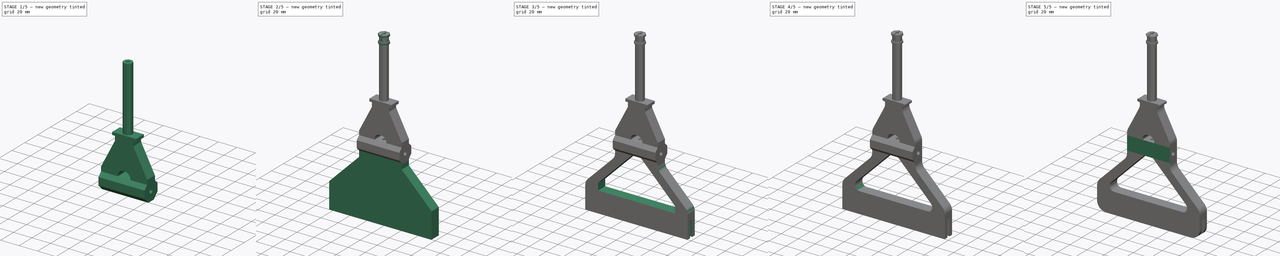
[diagram: build sequence overview — one tinted view per stage of 5, left to right]
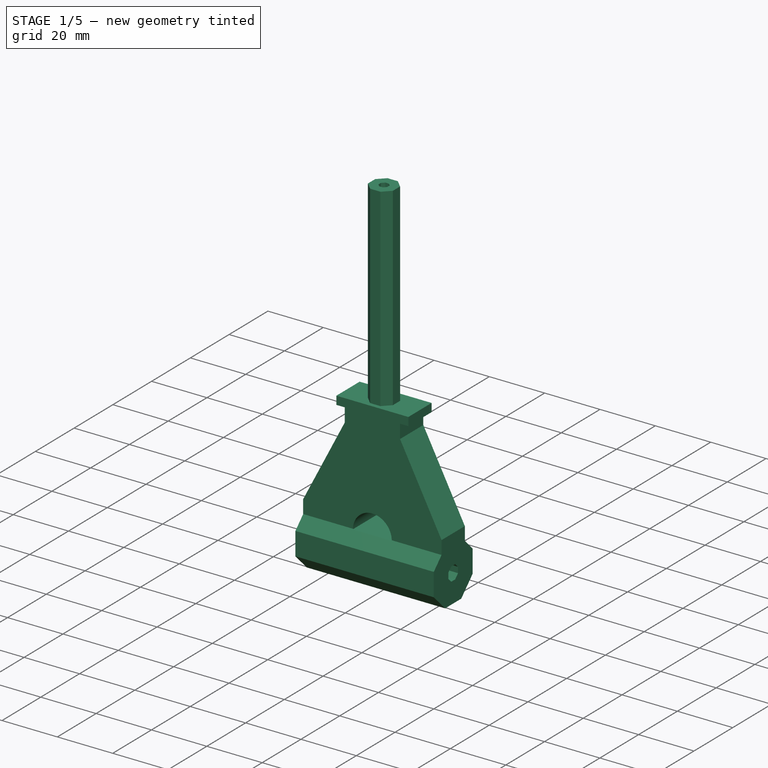
[diagram: stage 1 of 5 — iso view after this stage's code; geometry added in this stage tinted green]
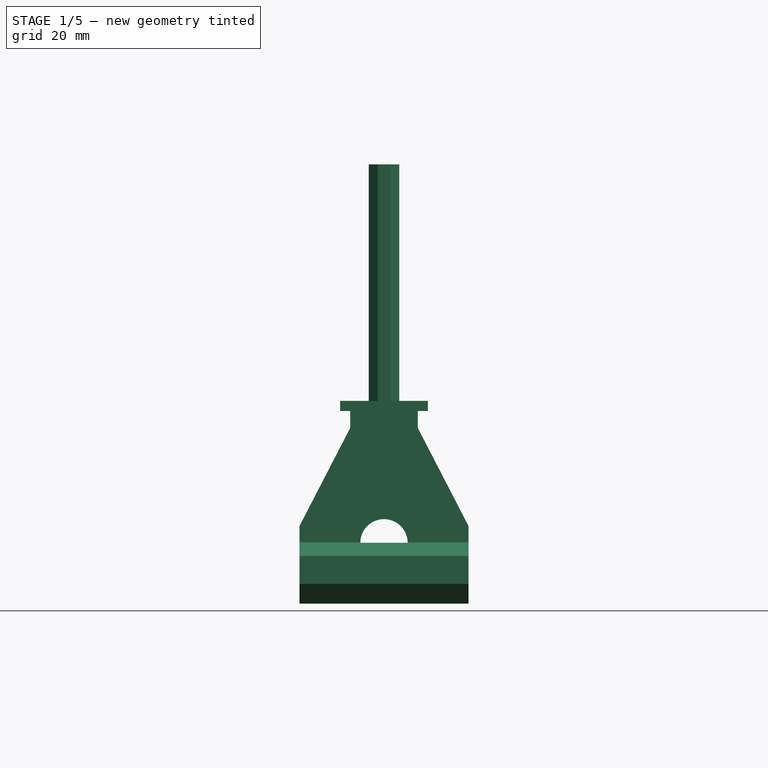
[diagram: stage 1 of 5 — front view after this stage's code; geometry added in this stage tinted green]
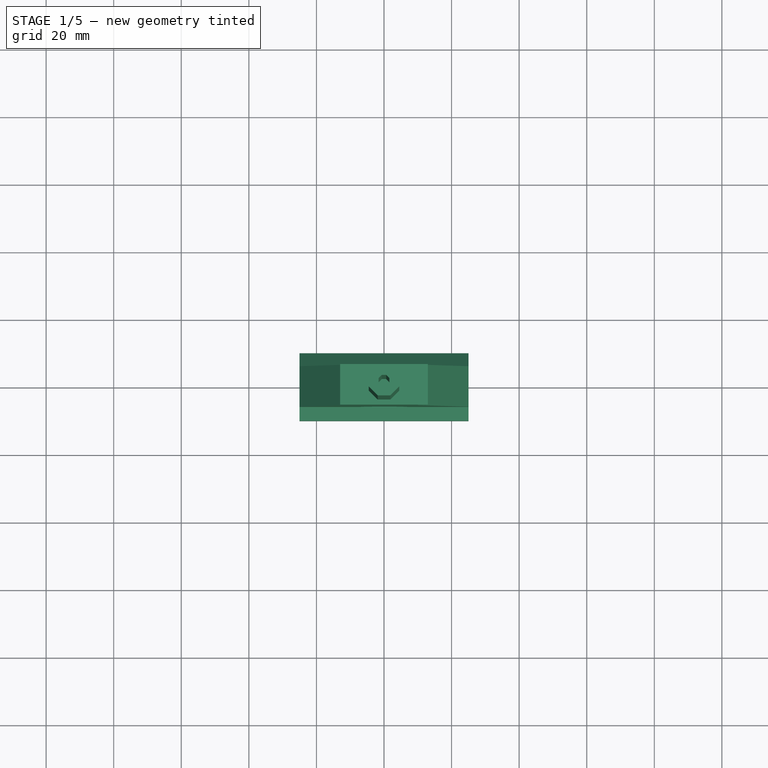
[diagram: stage 1 of 5 — top view after this stage's code; geometry added in this stage tinted green]
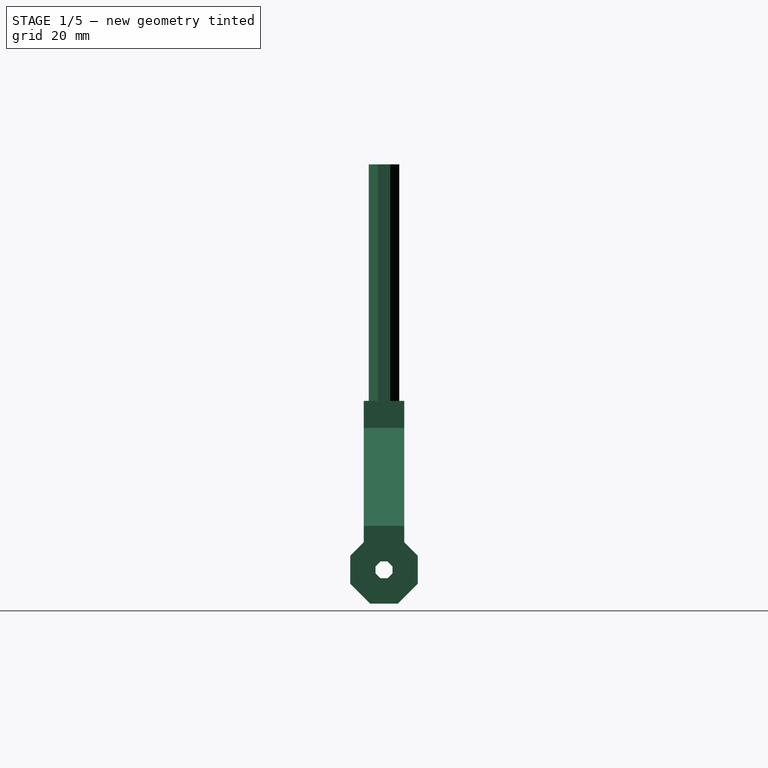
[diagram: stage 1 of 5 — right view after this stage's code; geometry added in this stage tinted green]
FCSTD DOCUMENT  (FreeCAD 0.17R13541 (Git))
Label: Spinner2
License: All rights reserved
LicenseURL: http://en.wikipedia.org/wiki/All_rights_reserved
objects: Sketcher::SketchObject×12, PartDesign::Pocket×7, PartDesign::Fillet×7, PartDesign::Pad×5, PartDesign::Chamfer×2, Spreadsheet::Sheet×1, PartDesign::LinearPattern×1, PartDesign::Body×1
note: 47 computed .brp shape members not serialized (recipe doc carries the construction recipe); baked Part::Feature solids carry a one-line shape summary decoded from their .brp

FEATURE [Spreadsheet::Sheet] Spreadsheet001  label="DriverSheet"
  cells = A1=Eyebolt radius; B1(EyeboltRadius)==2.3500000000000001mm; A2=Eyebolt length; B2(EyeboltLength)==50mm; A3=Clearance; B3(Clearance)==0.14999999999999999mm; A4=Head wide; B4(HeadWide)==20mm; A5=Fiber radius; B5(FiberRadius)==1.5mm; A6=Shaft length; B6(ShaftLength)==120mm; A7=Shaft wide; B7(ShaftWide)==9mm; A8=Shaft offset; B8(ShaftOffset)==5mm; A9=Bridge thick; B9(BridgeThick)==12mm; A10=Bridge length; B10(BridgeLength)==50mm; A11=Bridge wide; B11(BridgeWide)==20mm; A12=Bridge cutout; B12(BridgeCutout)==7mm; A13=Tail length; B13(TailLength)==80mm; A14=Tail tip; B14(TailTip)==30mm; A15=Tail wide; B15(TailWide)==120mm; A16=Tail thick; B16(TailThick)==12mm; A17=Tail slot; B17(TailSlot)==3.7999999999999998mm
FEATURE [Sketcher::SketchObject] Sketch
  MapMode = 5
  Placement = pos=(0,0,0) rot=(0.57735,0.57735,0.57735;2.0944rad)
  Support = -> [YZ_Plane]
  expr: Constraints[58] = DriverSheet.HeadWide
  expr: Constraints[29] = DriverSheet.EyeboltRadius + DriverSheet.Clearance
  expr: Constraints[1] = DriverSheet.EyeboltRadius
  sketch-geometry (22):
    g0: Circle [constr] CenterX=0 CenterY=0 CenterZ=0 NormalX=0 NormalY=0 NormalZ=1 AngleXU=0 Radius=2.35
    g1: LineSegment StartX=2.5 StartY=1.03553 StartZ=0 EndX=1.03553 EndY=2.5 EndZ=0
    g2: LineSegment StartX=1.03553 StartY=2.5 StartZ=0 EndX=-1.03553 EndY=2.5 EndZ=0
    g3: LineSegment StartX=-1.03553 StartY=2.5 StartZ=0 EndX=-2.5 EndY=1.03553 EndZ=0
    g4: LineSegment StartX=-2.5 StartY=1.03553 StartZ=0 EndX=-2.5 EndY=-1.03553 EndZ=0
    g5: LineSegment StartX=-2.5 StartY=-1.03553 StartZ=0 EndX=-1.03553 EndY=-2.5 EndZ=0
    g6: LineSegment StartX=-1.03553 StartY=-2.5 StartZ=0 EndX=1.03553 EndY=-2.5 EndZ=0
    g7: LineSegment StartX=1.03553 StartY=-2.5 StartZ=0 EndX=2.5 EndY=-1.03553 EndZ=0
    g8: LineSegment StartX=2.5 StartY=-1.03553 StartZ=0 EndX=2.5 EndY=1.03553 EndZ=0
    g9: Circle [constr] CenterX=0 CenterY=0 CenterZ=0 NormalX=0 NormalY=0 NormalZ=1 AngleXU=0 Radius=2.70598
    g10: GeomPoint X=2.5 Y=0 Z=0
    g11: LineSegment StartX=10 StartY=-4.14214 StartZ=0 EndX=10 EndY=4.14214 EndZ=0
    g12: LineSegment StartX=10 StartY=4.14214 StartZ=0 EndX=4.14214 EndY=10 EndZ=0
    g13: LineSegment StartX=4.14214 StartY=10 StartZ=0 EndX=-4.14214 EndY=10 EndZ=0
    g14: LineSegment StartX=-4.14214 StartY=10 StartZ=0 EndX=-10 EndY=4.14214 EndZ=0
    g15: LineSegment StartX=-10 StartY=4.14214 StartZ=0 EndX=-10 EndY=-4.14214 EndZ=0
    g16: LineSegment StartX=-10 StartY=-4.14214 StartZ=0 EndX=-4.14214 EndY=-10 EndZ=0
    g17: LineSegment StartX=-4.14214 StartY=-10 StartZ=0 EndX=4.14214 EndY=-10 EndZ=0
    g18: LineSegment StartX=4.14214 StartY=-10 StartZ=0 EndX=10 EndY=-4.14214 EndZ=0
    g19: Circle [constr] CenterX=0 CenterY=0 CenterZ=0 NormalX=0 NormalY=0 NormalZ=1 AngleXU=0 Radius=10.8239
    g20: GeomPoint X=10 Y=-0.001878 Z=0
    g21: GeomPoint X=-10 Y=0 Z=0
  constraints (47):
    c: Coincident(g0,g-1)
    c: Radius(g0) = 2.35
    c: Coincident(g1,g2)
    c: Coincident(g2,g3)
    c: Coincident(g3,g4)
    c: Coincident(g4,g5)
    c: Coincident(g5,g6)
    c: Coincident(g6,g7)
    c: Coincident(g7,g8)
    c: Coincident(g8,g1)
    c: Equal(g1, g2-g8) x7
    c: PointOnObject(g1,g9)
    c: PointOnObject(g2,g9)
    c: PointOnObject(g3,g9)
    c: PointOnObject(g4,g9)
    c: PointOnObject(g5,g9)
    c: PointOnObject(g6,g9)
    c: PointOnObject(g7,g9)
    c: PointOnObject(g8,g9)
    c: Coincident(g9,g-1)
    c: PointOnObject(g10,g8)
    c: PointOnObject(g10,g-1)
    c: Vertical(g8)
    c: DistanceX(g-1,g10) = 2.5
    c: Coincident(g11,g12)
    c: Coincident(g12,g13)
    c: Coincident(g13,g14)
    c: Coincident(g14,g15)
    c: Coincident(g15,g16)
    c: Coincident(g16,g17)
    c: Coincident(g17,g18)
    c: Coincident(g18,g11)
    c: Equal(g11, g12-g18) x7
    c: PointOnObject(g11,g19)
    c: PointOnObject(g12,g19)
    c: PointOnObject(g13,g19)
    c: PointOnObject(g14,g19)
    c: PointOnObject(g15,g19)
    c: PointOnObject(g16,g19)
    c: PointOnObject(g17,g19)
    c: PointOnObject(g18,g19)
    c: Coincident(g19,g-1)
    c: Vertical(g11)
    c: PointOnObject(g20,g11)
    c: PointOnObject(g21,g15)
    c: PointOnObject(g21,g-1)
    c: DistanceX(g21,g20) = 20
FEATURE [PartDesign::Pad] Pad  label="Head"
  Length = 25
  Length2 = 25
  Placement = pos=(0,0,0) rot=(0.57735,0.57735,0.57735;2.0944rad)
  Profile = -> Sketch
  Type = 4
  expr: Length2 = DriverSheet.EyeboltLength * 0.5
  expr: Length = DriverSheet.EyeboltLength * 0.5
FEATURE [Sketcher::SketchObject] Sketch001
  MapMode = 5
  Support = -> [XY_Plane]
  expr: Constraints[59] = DriverSheet.ShaftWide
  expr: Constraints[58] = DriverSheet.FiberRadius + DriverSheet.Clearance * 0.5
  sketch-geometry (22):
    g0: LineSegment StartX=1.575 StartY=-0.652386 StartZ=0 EndX=1.575 EndY=0.652386 EndZ=0
    g1: LineSegment StartX=1.575 StartY=0.652386 StartZ=0 EndX=0.652386 EndY=1.575 EndZ=0
    g2: LineSegment StartX=0.652386 StartY=1.575 StartZ=0 EndX=-0.652386 EndY=1.575 EndZ=0
    g3: LineSegment StartX=-0.652386 StartY=1.575 StartZ=0 EndX=-1.575 EndY=0.652386 EndZ=0
    g4: LineSegment StartX=-1.575 StartY=0.652386 StartZ=0 EndX=-1.575 EndY=-0.652386 EndZ=0
    g5: LineSegment StartX=-1.575 StartY=-0.652386 StartZ=0 EndX=-0.652386 EndY=-1.575 EndZ=0
    g6: LineSegment StartX=-0.652386 StartY=-1.575 StartZ=0 EndX=0.652386 EndY=-1.575 EndZ=0
    g7: LineSegment StartX=0.652386 StartY=-1.575 StartZ=0 EndX=1.575 EndY=-0.652386 EndZ=0
    g8: Circle [constr] CenterX=0 CenterY=0 CenterZ=0 NormalX=0 NormalY=0 NormalZ=1 AngleXU=0 Radius=1.70477
    g9: LineSegment StartX=4.5 StartY=-1.86396 StartZ=0 EndX=4.5 EndY=1.86396 EndZ=0
    g10: LineSegment StartX=4.5 StartY=1.86396 StartZ=0 EndX=1.86396 EndY=4.5 EndZ=0
    g11: LineSegment StartX=1.86396 StartY=4.5 StartZ=0 EndX=-1.86396 EndY=4.5 EndZ=0
    g12: LineSegment StartX=-1.86396 StartY=4.5 StartZ=0 EndX=-4.5 EndY=1.86396 EndZ=0
    g13: LineSegment StartX=-4.5 StartY=1.86396 StartZ=0 EndX=-4.5 EndY=-1.86396 EndZ=0
    g14: LineSegment StartX=-4.5 StartY=-1.86396 StartZ=0 EndX=-1.86396 EndY=-4.5 EndZ=0
    g15: LineSegment StartX=-1.86396 StartY=-4.5 StartZ=0 EndX=1.86396 EndY=-4.5 EndZ=0
    g16: LineSegment StartX=1.86396 StartY=-4.5 StartZ=0 EndX=4.5 EndY=-1.86396 EndZ=0
    g17: Circle [constr] CenterX=0 CenterY=0 CenterZ=0 NormalX=0 NormalY=0 NormalZ=1 AngleXU=0 Radius=4.87076
    g18: GeomPoint X=-4.5 Y=0 Z=0
    g19: GeomPoint X=4.5 Y=0 Z=0
    g20: GeomPoint X=-1.575 Y=0 Z=0
    g21: GeomPoint X=1.575 Y=0 Z=0
  constraints (48):
    c: Coincident(g0,g1)
    c: Coincident(g1,g2)
    c: Coincident(g2,g3)
    c: Coincident(g3,g4)
    c: Coincident(g4,g5)
    c: Coincident(g5,g6)
    c: Coincident(g6,g7)
    c: Coincident(g7,g0)
    c: Equal(g0, g1-g7) x7
    c: PointOnObject(g0,g8)
    c: PointOnObject(g1,g8)
    c: PointOnObject(g2,g8)
    c: PointOnObject(g3,g8)
    c: PointOnObject(g4,g8)
    c: PointOnObject(g5,g8)
    c: PointOnObject(g6,g8)
    c: PointOnObject(g7,g8)
    c: Coincident(g8,g-1)
    c: Coincident(g9,g10)
    c: Coincident(g10,g11)
    c: Coincident(g11,g12)
    c: Coincident(g12,g13)
    c: Coincident(g13,g14)
    c: Coincident(g14,g15)
    c: Coincident(g15,g16)
    c: Coincident(g16,g9)
    c: Equal(g9, g10-g16) x7
    c: PointOnObject(g9,g17)
    c: PointOnObject(g10,g17)
    c: PointOnObject(g11,g17)
    c: PointOnObject(g12,g17)
    c: PointOnObject(g13,g17)
    c: PointOnObject(g14,g17)
    c: PointOnObject(g15,g17)
    c: PointOnObject(g16,g17)
    c: Coincident(g17,g-1)
    c: Vertical(g9)
    c: Vertical(g0)
    c: PointOnObject(g18,g13)
    c: PointOnObject(g19,g9)
    c: PointOnObject(g20,g4)
    c: PointOnObject(g21,g0)
    c: PointOnObject(g21,g-1)
    c: PointOnObject(g19,g-1)
    c: PointOnObject(g20,g-1)
    c: PointOnObject(g18,g-1)
    c: DistanceX(g20,g-1) = 1.575
    c: DistanceX(g18,g19) = 9
FEATURE [PartDesign::Pad] Pad001  label="Shaft"
  BaseFeature = -> Pad
  Length = 120
  Length2 = -5
  Placement = pos=(0,0,0) rot=(0.57735,0.57735,0.57735;2.0944rad)
  Profile = -> Sketch001
  Type = 4
  expr: Length2 = -DriverSheet.ShaftOffset
  expr: Length = DriverSheet.ShaftLength
FEATURE [Sketcher::SketchObject] Sketch002
  MapMode = 5
  Placement = pos=(0,0,0) rot=(1,0,0;1.5708rad)
  Support = -> [XZ_Plane]
  expr: Constraints[35] = DriverSheet.BridgeWide
  expr: Constraints[31] = DriverSheet.BridgeLength
  expr: Constraints[3] = DriverSheet.EyeboltLength * 0.5
  expr: Constraints[2] = DriverSheet.HeadWide * 0.40000000000000002
  expr: Constraints[1] = DriverSheet.EyeboltLength
  sketch-geometry (12):
    g0: LineSegment StartX=-25 StartY=8 StartZ=0 EndX=25 EndY=8 EndZ=0
    g1: LineSegment StartX=-25 StartY=8 StartZ=0 EndX=-25 EndY=13 EndZ=0
    g2: LineSegment StartX=-25 StartY=13 StartZ=0 EndX=-10 EndY=42 EndZ=0
    g3: LineSegment StartX=-10 StartY=42 StartZ=0 EndX=-10 EndY=47 EndZ=0
    g4: LineSegment StartX=-10 StartY=47 StartZ=0 EndX=-13 EndY=47 EndZ=0
    g5: LineSegment StartX=-13 StartY=47 StartZ=0 EndX=-13 EndY=50 EndZ=0
    g6: LineSegment StartX=-13 StartY=50 StartZ=0 EndX=13 EndY=50 EndZ=0
    g7: LineSegment StartX=13 StartY=50 StartZ=0 EndX=13 EndY=47 EndZ=0
    g8: LineSegment StartX=13 StartY=47 StartZ=0 EndX=10 EndY=47 EndZ=0
    g9: LineSegment StartX=10 StartY=47 StartZ=0 EndX=10 EndY=42 EndZ=0
    g10: LineSegment StartX=10 StartY=42 StartZ=0 EndX=25 EndY=13 EndZ=0
    g11: LineSegment StartX=25 StartY=13 StartZ=0 EndX=25 EndY=8 EndZ=0
  constraints (36):
    c: Horizontal(g0)
    c: DistanceX(g0,g0) = 50
    c: DistanceY(g-1,g0) = 8
    c: DistanceX(g0,g-1) = 25
    c: Coincident(g1,g0)
    c: Vertical(g1)
    c: Coincident(g2,g1)
    c: Coincident(g3,g2)
    c: Vertical(g3)
    c: Coincident(g4,g3)
    c: Coincident(g5,g4)
    c: Coincident(g6,g5)
    c: Horizontal(g6)
    c: Coincident(g7,g6)
    c: Vertical(g7)
    c: Coincident(g8,g7)
    c: Horizontal(g8)
    c: Coincident(g9,g8)
    c: Vertical(g9)
    c: Coincident(g10,g9)
    c: Coincident(g11,g10)
    c: Vertical(g11)
    c: DistanceY(g7,g7) = 3
    c: DistanceY(g9,g9) = 5
    c: DistanceY(g11,g11) = 5
    c: Vertical(g5)
    c: Horizontal(g4)
    c: Equal(g5,g7)
    c: Equal(g9,g3)
    c: Equal(g1,g11)
    c: Coincident(g11,g0)
    c: DistanceY(g-1,g5) = 50
    c: DistanceX(g8,g8) = 3
    c: Equal(g8,g4)
    c: Symmetric(g3,g8,g-2)
    c: DistanceX(g2,g9) = 20
FEATURE [PartDesign::Pad] Pad002  label="Bridge"
  BaseFeature = -> Pad001
  Length = 6
  Length2 = 6
  Placement = pos=(0,0,0) rot=(0.57735,0.57735,0.57735;2.0944rad)
  Profile = -> Sketch002
  Type = 4
  expr: Length2 = DriverSheet.BridgeThick * 0.5
  expr: Length = DriverSheet.BridgeThick * 0.5
FEATURE [Sketcher::SketchObject] Sketch003
  ExternalGeometry = -> [Sketch002]
  MapMode = 5
  Placement = pos=(0,0,0) rot=(1,0,0;1.5708rad)
  Support = -> [XZ_Plane]
  expr: Constraints[5] = DriverSheet.BridgeCutout
  sketch-geometry (3):
    g0: GeomPoint X=0 Y=8 Z=0
    g1: ArcOfCircle CenterX=0 CenterY=8 CenterZ=0 NormalX=0 NormalY=0 NormalZ=1 AngleXU=0 Radius=7 StartAngle=0 EndAngle=3.14159
    g2: LineSegment StartX=-7 StartY=8 StartZ=0 EndX=7 EndY=8 EndZ=0
  constraints (9):
    c: PointOnObject(g0,g-3)
    c: PointOnObject(g0,g-2)
    c: Coincident(g1,g0)
    c: PointOnObject(g1,g-3)
    c: PointOnObject(g1,g-3)
    c: Radius(g1) = 7
    c: Coincident(g2,g1)
    c: Horizontal(g2)
    c: Coincident(g2,g1)
FEATURE [PartDesign::Pocket] Pocket  label="Cutout"
  BaseFeature = -> Pad002
  Length = 5
  Length2 = 100
  Midplane = true
  Placement = pos=(0,0,0) rot=(0.57735,0.57735,0.57735;2.0944rad)
  Profile = -> Sketch003
  Type = 1
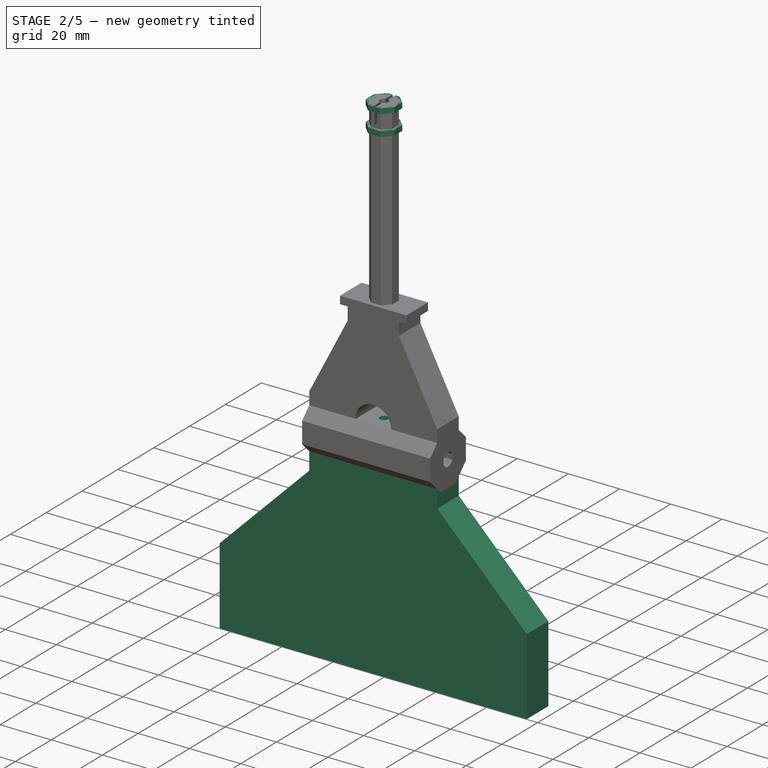
[diagram: stage 2 of 5 — iso view after this stage's code; geometry added in this stage tinted green]
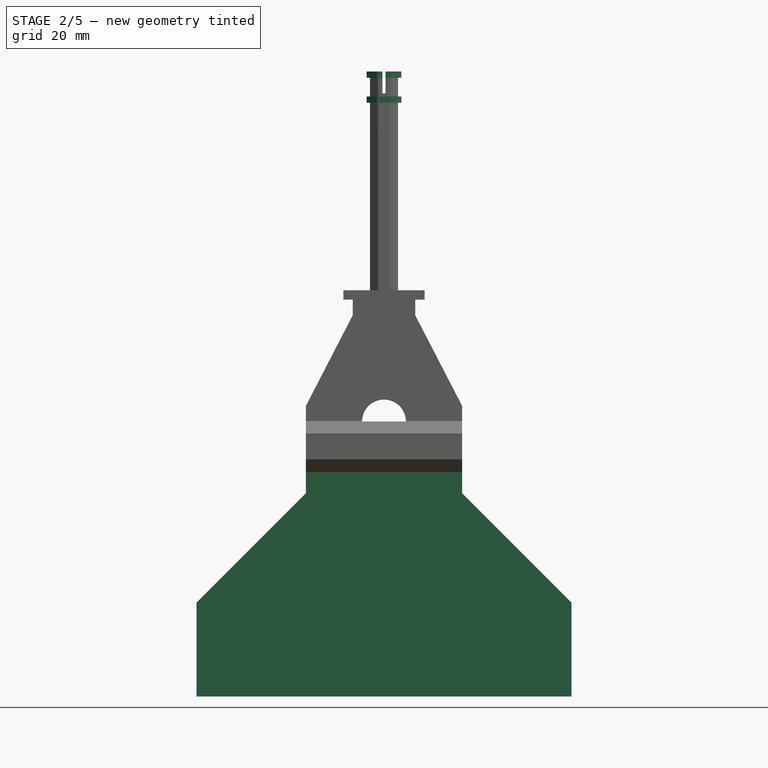
[diagram: stage 2 of 5 — front view after this stage's code; geometry added in this stage tinted green]
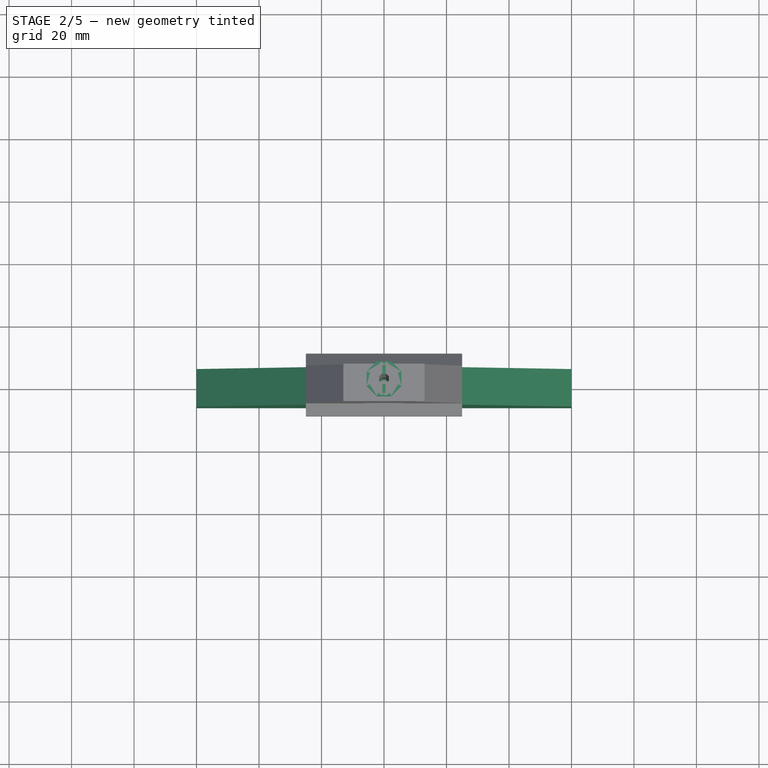
[diagram: stage 2 of 5 — top view after this stage's code; geometry added in this stage tinted green]
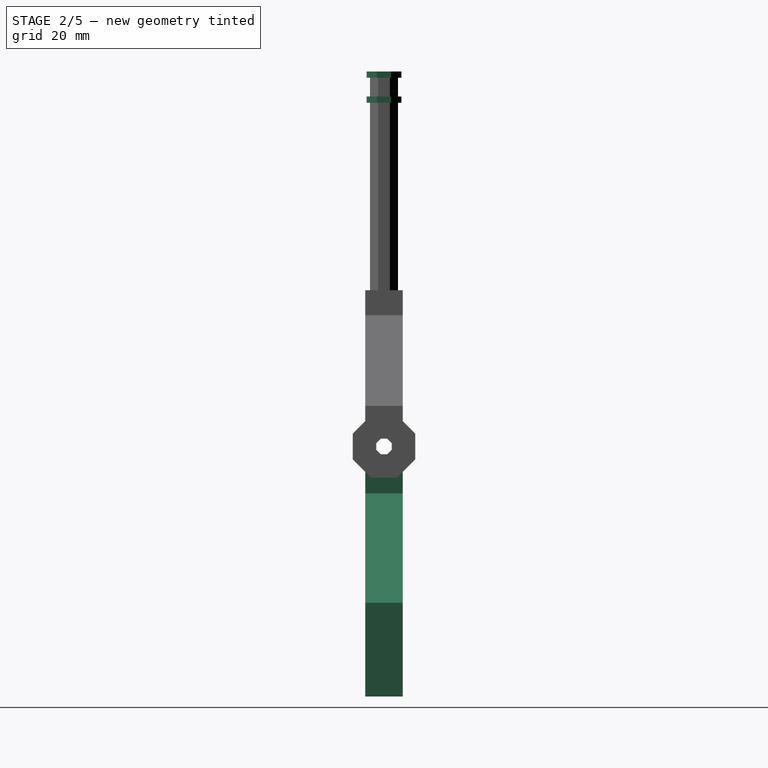
[diagram: stage 2 of 5 — right view after this stage's code; geometry added in this stage tinted green]
FEATURE [Sketcher::SketchObject] Sketch004
  MapMode = 5
  Support = -> [XY_Plane]
  expr: Constraints[29] = DriverSheet.FiberRadius + DriverSheet.Clearance * 0.5
  sketch-geometry (11):
    g0: LineSegment StartX=1.575 StartY=-0.652386 StartZ=0 EndX=1.575 EndY=0.652386 EndZ=0
    g1: LineSegment StartX=1.575 StartY=0.652386 StartZ=0 EndX=0.652386 EndY=1.575 EndZ=0
    g2: LineSegment StartX=0.652386 StartY=1.575 StartZ=0 EndX=-0.652386 EndY=1.575 EndZ=0
    g3: LineSegment StartX=-0.652386 StartY=1.575 StartZ=0 EndX=-1.575 EndY=0.652386 EndZ=0
    g4: LineSegment StartX=-1.575 StartY=0.652386 StartZ=0 EndX=-1.575 EndY=-0.652386 EndZ=0
    g5: LineSegment StartX=-1.575 StartY=-0.652386 StartZ=0 EndX=-0.652386 EndY=-1.575 EndZ=0
    g6: LineSegment StartX=-0.652386 StartY=-1.575 StartZ=0 EndX=0.652386 EndY=-1.575 EndZ=0
    g7: LineSegment StartX=0.652386 StartY=-1.575 StartZ=0 EndX=1.575 EndY=-0.652386 EndZ=0
    g8: Circle [constr] CenterX=0 CenterY=0 CenterZ=0 NormalX=0 NormalY=0 NormalZ=1 AngleXU=0 Radius=1.70477
    g9: GeomPoint X=-1.575 Y=0 Z=0
    g10: GeomPoint X=1.575 Y=0 Z=0
  constraints (24):
    c: Coincident(g0,g1)
    c: Coincident(g1,g2)
    c: Coincident(g2,g3)
    c: Coincident(g3,g4)
    c: Coincident(g4,g5)
    c: Coincident(g5,g6)
    c: Coincident(g6,g7)
    c: Coincident(g7,g0)
    c: Equal(g0, g1-g7) x7
    c: PointOnObject(g0,g8)
    c: PointOnObject(g1,g8)
    c: PointOnObject(g2,g8)
    c: PointOnObject(g3,g8)
    c: PointOnObject(g4,g8)
    c: PointOnObject(g5,g8)
    c: PointOnObject(g6,g8)
    c: PointOnObject(g7,g8)
    c: Coincident(g8,g-1)
    c: Vertical(g0)
    c: PointOnObject(g9,g4)
    c: PointOnObject(g10,g0)
    c: PointOnObject(g10,g-1)
    c: PointOnObject(g9,g-1)
    c: DistanceX(g9,g-1) = 1.575
FEATURE [PartDesign::Pocket] Pocket001  label="FiberTunnel"
  BaseFeature = -> Pocket
  Length = 0
  Length2 = 50
  Placement = pos=(0,0,0) rot=(0.57735,0.57735,0.57735;2.0944rad)
  Profile = -> Sketch004
  Reversed = true
  Type = 1
  expr: Length2 = DriverSheet.BridgeLength
  expr: Length = 0
FEATURE [Sketcher::SketchObject] Sketch005
  MapMode = 5
  Placement = pos=(0,0,120) rot=(0,0,-1;1.5708rad)
  Support = -> [Pocket001]
  expr: Constraints[49] = DriverSheet.BridgeThick / 2
  expr: Constraints[50] = DriverSheet.ShaftWide / 2 - 1mm
  sketch-geometry (18):
    g0: LineSegment StartX=5.54328 StartY=-2.2961 StartZ=0 EndX=5.54328 EndY=2.2961 EndZ=0
    g1: LineSegment StartX=5.54328 StartY=2.2961 StartZ=0 EndX=2.2961 EndY=5.54328 EndZ=0
    g2: LineSegment StartX=2.2961 StartY=5.54328 StartZ=0 EndX=-2.2961 EndY=5.54328 EndZ=0
    g3: LineSegment StartX=-2.2961 StartY=5.54328 StartZ=0 EndX=-5.54328 EndY=2.2961 EndZ=0
    g4: LineSegment StartX=-5.54328 StartY=2.2961 StartZ=0 EndX=-5.54328 EndY=-2.2961 EndZ=0
    g5: LineSegment StartX=-5.54328 StartY=-2.2961 StartZ=0 EndX=-2.2961 EndY=-5.54328 EndZ=0
    g6: LineSegment StartX=-2.2961 StartY=-5.54328 StartZ=0 EndX=2.2961 EndY=-5.54328 EndZ=0
    g7: LineSegment StartX=2.2961 StartY=-5.54328 StartZ=0 EndX=5.54328 EndY=-2.2961 EndZ=0
    g8: Circle [constr] CenterX=0 CenterY=0 CenterZ=0 NormalX=0 NormalY=0 NormalZ=1 AngleXU=0 Radius=6
    g9: LineSegment StartX=1.33939 StartY=-3.23358 StartZ=0 EndX=3.23358 EndY=-1.33939 EndZ=0
    g10: LineSegment StartX=3.23358 StartY=-1.33939 StartZ=0 EndX=3.23358 EndY=1.33939 EndZ=0
    g11: LineSegment StartX=3.23358 StartY=1.33939 StartZ=0 EndX=1.33939 EndY=3.23358 EndZ=0
    g12: LineSegment StartX=1.33939 StartY=3.23358 StartZ=0 EndX=-1.33939 EndY=3.23358 EndZ=0
    g13: LineSegment StartX=-1.33939 StartY=3.23358 StartZ=0 EndX=-3.23358 EndY=1.33939 EndZ=0
    g14: LineSegment StartX=-3.23358 StartY=1.33939 StartZ=0 EndX=-3.23358 EndY=-1.33939 EndZ=0
    g15: LineSegment StartX=-3.23358 StartY=-1.33939 StartZ=0 EndX=-1.33939 EndY=-3.23358 EndZ=0
    g16: LineSegment StartX=-1.33939 StartY=-3.23358 StartZ=0 EndX=1.33939 EndY=-3.23358 EndZ=0
    g17: Circle [constr] CenterX=0 CenterY=0 CenterZ=0 NormalX=0 NormalY=0 NormalZ=1 AngleXU=0 Radius=3.5
  constraints (40):
    c: Coincident(g0,g1)
    c: Coincident(g1,g2)
    c: Coincident(g2,g3)
    c: Coincident(g3,g4)
    c: Coincident(g4,g5)
    c: Coincident(g5,g6)
    c: Coincident(g6,g7)
    c: Coincident(g7,g0)
    c: Equal(g0, g1-g7) x7
    c: PointOnObject(g0,g8)
    c: PointOnObject(g1,g8)
    c: PointOnObject(g2,g8)
    c: PointOnObject(g3,g8)
    c: PointOnObject(g4,g8)
    c: PointOnObject(g5,g8)
    c: PointOnObject(g6,g8)
    c: PointOnObject(g7,g8)
    c: Coincident(g8,g-1)
    c: Coincident(g9,g10)
    c: Coincident(g10,g11)
    c: Coincident(g11,g12)
    c: Coincident(g12,g13)
    c: Coincident(g13,g14)
    c: Coincident(g14,g15)
    c: Coincident(g15,g16)
    c: Coincident(g16,g9)
    c: Equal(g9, g10-g16) x7
    c: PointOnObject(g9,g17)
    c: PointOnObject(g10,g17)
    c: PointOnObject(g11,g17)
    c: PointOnObject(g12,g17)
    c: PointOnObject(g13,g17)
    c: PointOnObject(g14,g17)
    c: PointOnObject(g15,g17)
    c: PointOnObject(g16,g17)
    c: Vertical(g0)
    c: Vertical(g10)
    c: Radius(g8) = 6
    c: Radius(g17) = 3.5
    c: Coincident(g-1,g17)
FEATURE [PartDesign::Pad] Pad003  label="Tip"
  BaseFeature = -> Pocket001
  Length = 2
  Length2 = 100
  Placement = pos=(0,0,0) rot=(0.57735,0.57735,0.57735;2.0944rad)
  Profile = -> Sketch005
  Reversed = true
  Type = 0
FEATURE [PartDesign::LinearPattern] LinearPattern  label="Collar"
  BaseFeature = -> Pad003
  Direction = -> Sketch005 [N_Axis]
  Length = 8
  Occurrences = 2
  Originals = -> [Pad003]
  Placement = pos=(0,0,0) rot=(0.57735,0.57735,0.57735;2.0944rad)
  Reversed = true
FEATURE [Sketcher::SketchObject] Sketch006
  MapMode = 5
  Placement = pos=(0,0,120) rot=(0,0,-1;1.5708rad)
  Support = -> [LinearPattern]
  sketch-geometry (4):
    g0: LineSegment StartX=-7.5 StartY=-0.5 StartZ=0 EndX=7.5 EndY=-0.5 EndZ=0
    g1: LineSegment StartX=7.5 StartY=-0.5 StartZ=0 EndX=7.5 EndY=0.5 EndZ=0
    g2: LineSegment StartX=7.5 StartY=0.5 StartZ=0 EndX=-7.5 EndY=0.5 EndZ=0
    g3: LineSegment StartX=-7.5 StartY=0.5 StartZ=0 EndX=-7.5 EndY=-0.5 EndZ=0
  constraints (11):
    c: Coincident(g0,g1)
    c: Coincident(g1,g2)
    c: Coincident(g2,g3)
    c: Coincident(g3,g0)
    c: Horizontal(g0)
    c: Horizontal(g2)
    c: Vertical(g1)
    c: Vertical(g3)
    c: Symmetric(g0,g1,g-1)
    c: DistanceY(g1,g1) = 1
    c: DistanceX(g0,g0) = 15
FEATURE [PartDesign::Pocket] Pocket002  label="Slit"
  BaseFeature = -> LinearPattern
  Length = 7
  Length2 = 100
  Placement = pos=(0,0,0) rot=(0.57735,0.57735,0.57735;2.0944rad)
  Profile = -> Sketch006
  Type = 0
FEATURE [Sketcher::SketchObject] Sketch007
  MapMode = 5
  Placement = pos=(0,0,0) rot=(1,0,0;1.5708rad)
  Support = -> [XZ_Plane]
  expr: Constraints[25] = DriverSheet.TailWide / 2
  expr: Constraints[24] = DriverSheet.EyeboltLength / 2
  expr: Constraints[22] = DriverSheet.TailLength
  expr: Constraints[23] = DriverSheet.TailWide / 2
  expr: Constraints[19] = DriverSheet.ShaftOffset
  expr: Constraints[18] = DriverSheet.TailTip
  sketch-geometry (9):
    g0: LineSegment StartX=-25 StartY=-5 StartZ=0 EndX=25 EndY=-5 EndZ=0
    g1: LineSegment StartX=-25 StartY=-5 StartZ=0 EndX=-25 EndY=-15 EndZ=0
    g2: LineSegment StartX=-25 StartY=-15 StartZ=0 EndX=-60 EndY=-50 EndZ=0
    g3: LineSegment StartX=-60 StartY=-50 StartZ=0 EndX=-60 EndY=-80 EndZ=0
    g4: LineSegment StartX=-60 StartY=-80 StartZ=0 EndX=60 EndY=-80 EndZ=0
    g5: LineSegment StartX=60 StartY=-80 StartZ=0 EndX=60 EndY=-50 EndZ=0
    g6: LineSegment StartX=60 StartY=-50 StartZ=0 EndX=25 EndY=-15 EndZ=0
    g7: LineSegment StartX=25 StartY=-15 StartZ=0 EndX=25 EndY=-5 EndZ=0
    g8: GeomPoint X=0 Y=-5 Z=0
  constraints (26):
    c: Horizontal(g0)
    c: Coincident(g1,g0)
    c: Vertical(g1)
    c: Vertical(g3)
    c: Coincident(g4,g3)
    c: Horizontal(g4)
    c: Coincident(g5,g4)
    c: Vertical(g5)
    c: Coincident(g6,g5)
    c: Coincident(g7,g6)
    c: Coincident(g7,g0)
    c: PointOnObject(g8,g0)
    c: PointOnObject(g8,g-2)
    c: Symmetric(g0,g0,g8)
    c: Vertical(g7)
    c: Coincident(g2,g1)
    c: Coincident(g2,g3)
    c: DistanceY(g7,g7) = 10
    c: DistanceY(g5,g5) = 30
    c: DistanceY(g8,g-1) = 5
    c: Equal(g7,g1)
    c: Equal(g5,g3)
    c: DistanceY(g4,g-1) = 80
    c: DistanceX(g-1,g4) = 60
    c: DistanceX(g-1,g0) = 25
    c: DistanceX(g3,g-1) = 60
FEATURE [PartDesign::Pad] Pad004  label="Tail"
  BaseFeature = -> Pocket002
  Length = 6
  Length2 = 6
  Placement = pos=(0,0,0) rot=(0.57735,0.57735,0.57735;2.0944rad)
  Profile = -> Sketch007
  Type = 4
  expr: Length2 = DriverSheet.TailThick / 2
  expr: Length = DriverSheet.TailThick / 2
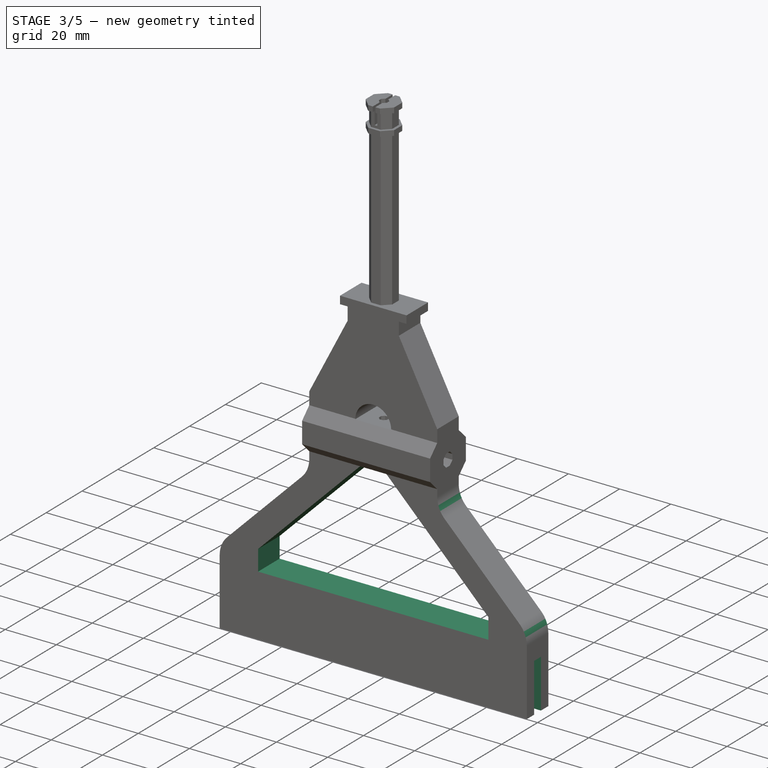
[diagram: stage 3 of 5 — iso view after this stage's code; geometry added in this stage tinted green]
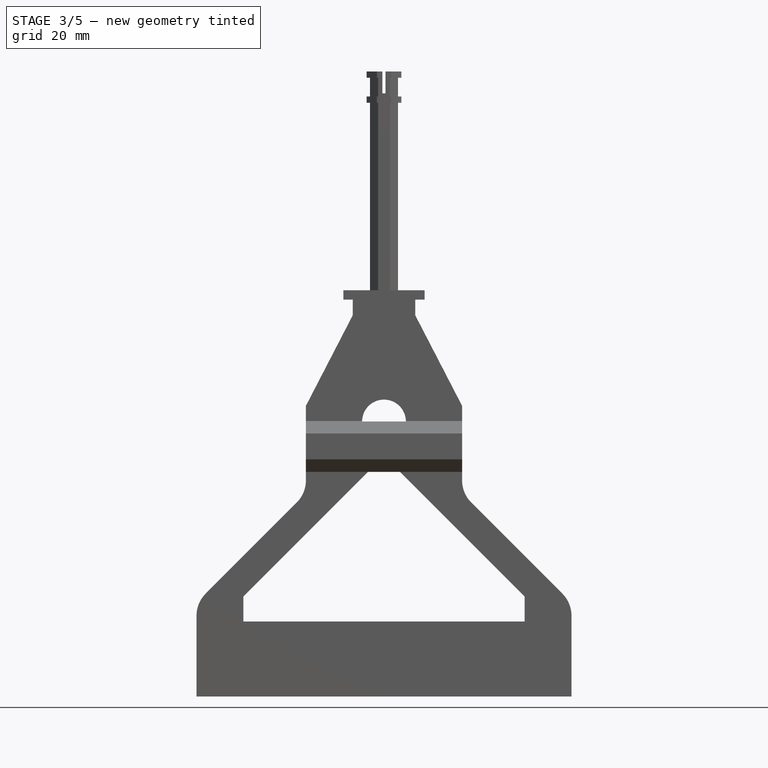
[diagram: stage 3 of 5 — front view after this stage's code; geometry added in this stage tinted green]
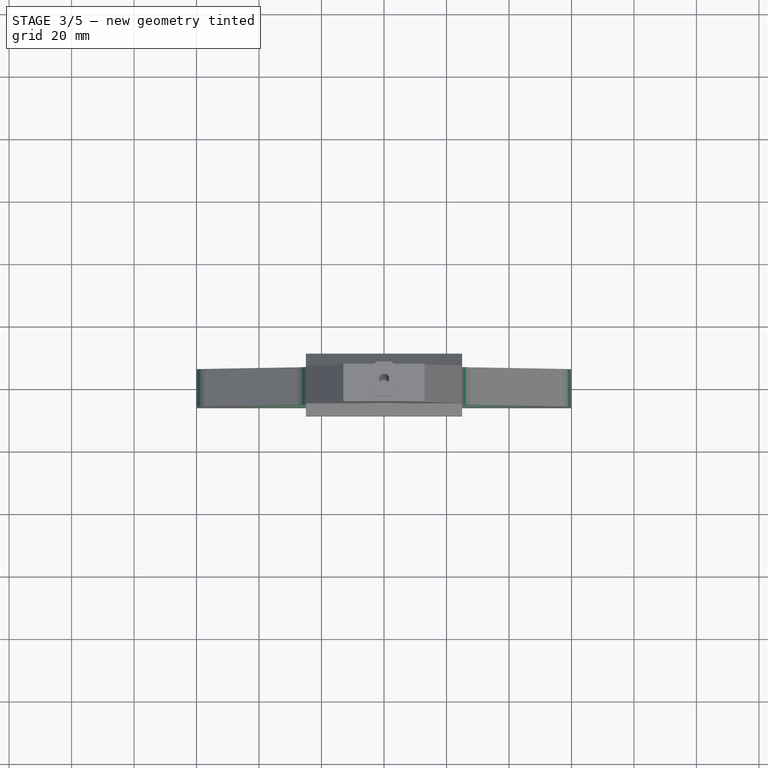
[diagram: stage 3 of 5 — top view after this stage's code; geometry added in this stage tinted green]
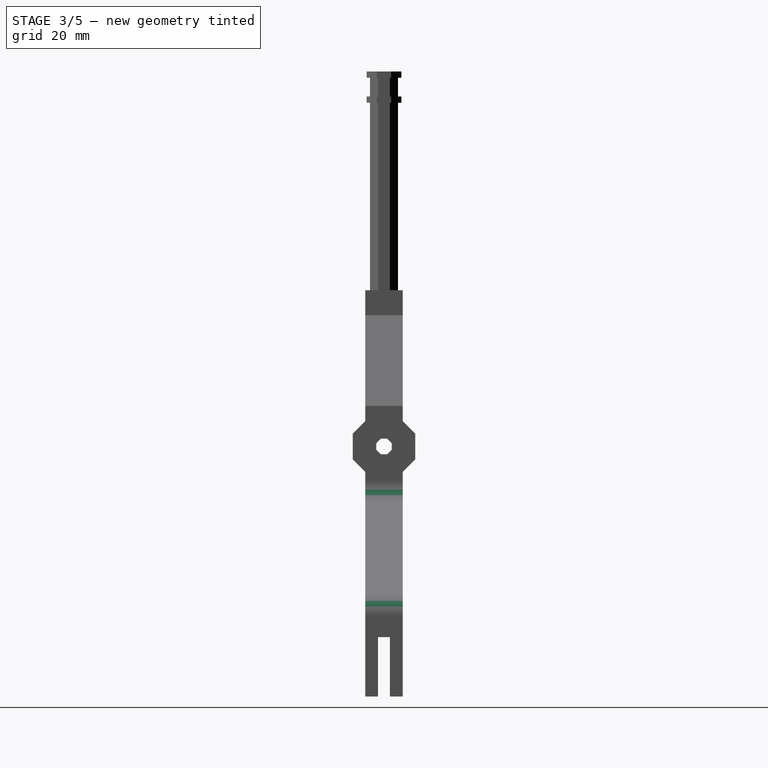
[diagram: stage 3 of 5 — right view after this stage's code; geometry added in this stage tinted green]
FEATURE [Sketcher::SketchObject] Sketch008
  MapMode = 5
  Placement = pos=(0,0,0) rot=(0.57735,0.57735,0.57735;2.0944rad)
  Support = -> [YZ_Plane]
  expr: Constraints[11] = DriverSheet.TailLength + 1mm
  expr: Constraints[10] = DriverSheet.TailSlot
  expr: Constraints[8] = DriverSheet.TailTip - 10mm
  sketch-geometry (4):
    g0: LineSegment StartX=-1.9 StartY=-61 StartZ=0 EndX=1.9 EndY=-61 EndZ=0
    g1: LineSegment StartX=1.9 StartY=-61 StartZ=0 EndX=1.9 EndY=-81 EndZ=0
    g2: LineSegment StartX=1.9 StartY=-81 StartZ=0 EndX=-1.9 EndY=-81 EndZ=0
    g3: LineSegment StartX=-1.9 StartY=-81 StartZ=0 EndX=-1.9 EndY=-61 EndZ=0
  constraints (12):
    c: Coincident(g0,g1)
    c: Coincident(g1,g2)
    c: Coincident(g2,g3)
    c: Coincident(g3,g0)
    c: Horizontal(g0)
    c: Horizontal(g2)
    c: Vertical(g1)
    c: Vertical(g3)
    c: DistanceY(g1,g1) = 20
    c: Symmetric(g0,g0,g-2)
    c: DistanceX(g2,g2) = 3.8
    c: DistanceY(g1,g-1) = 81
FEATURE [PartDesign::Pocket] Pocket003  label="Slot"
  BaseFeature = -> Pad004
  Length = 5
  Length2 = 100
  Midplane = true
  Placement = pos=(0,0,0) rot=(0.57735,0.57735,0.57735;2.0944rad)
  Profile = -> Sketch008
  Type = 1
FEATURE [Sketcher::SketchObject] Sketch009
  ExternalGeometry = -> [Pocket003]
  MapMode = 5
  Placement = pos=(0,0,0) rot=(1,0,0;1.5708rad)
  Support = -> [XZ_Plane]
  sketch-geometry (6):
    g0: LineSegment StartX=-5.14214 StartY=-8.14214 StartZ=0 EndX=5.14214 EndY=-8.14214 EndZ=0
    g1: LineSegment StartX=5.14214 StartY=-8.14214 StartZ=0 EndX=45 EndY=-48 EndZ=0
    g2: LineSegment StartX=45 StartY=-48 StartZ=0 EndX=45 EndY=-56 EndZ=0
    g3: LineSegment StartX=45 StartY=-56 StartZ=0 EndX=-45 EndY=-56 EndZ=0
    g4: LineSegment StartX=-45 StartY=-56 StartZ=0 EndX=-45 EndY=-48 EndZ=0
    g5: LineSegment StartX=-45 StartY=-48 StartZ=0 EndX=-5.14214 EndY=-8.14214 EndZ=0
  constraints (18):
    c: Coincident(g1,g0)
    c: Coincident(g2,g1)
    c: Vertical(g2)
    c: Coincident(g3,g2)
    c: Horizontal(g3)
    c: Coincident(g4,g3)
    c: Coincident(g5,g4)
    c: Coincident(g5,g0)
    c: Vertical(g4)
    c: Parallel(g1,g-4)
    c: Parallel(g5,g-3)
    c: Symmetric(g0,g0,g-2)
    c: DistanceY(g-6,g2) = 5
    c: DistanceY(g0,g-5) = 0
    c: DistanceX(g1,g-4) = 15
    c: Equal(g2,g4)
    c: Equal(g1,g5)
    c: DistanceY(g2,g1) = 8
FEATURE [PartDesign::Pocket] Pocket004
  BaseFeature = -> Pocket003
  Length = 5
  Length2 = 100
  Midplane = true
  Placement = pos=(0,0,0) rot=(0.57735,0.57735,0.57735;2.0944rad)
  Profile = -> Sketch009
  Type = 1
FEATURE [PartDesign::Fillet] Fillet
  Base = -> Pocket004 [Edge158,Edge140]
  BaseFeature = -> Pocket004
  Placement = pos=(0,0,0) rot=(0.57735,0.57735,0.57735;2.0944rad)
  Radius = 10
FEATURE [PartDesign::Fillet] Fillet001
  Base = -> Fillet [Edge28,Edge45]
  BaseFeature = -> Fillet
  Placement = pos=(0,0,0) rot=(0.57735,0.57735,0.57735;2.0944rad)
  Radius = 10
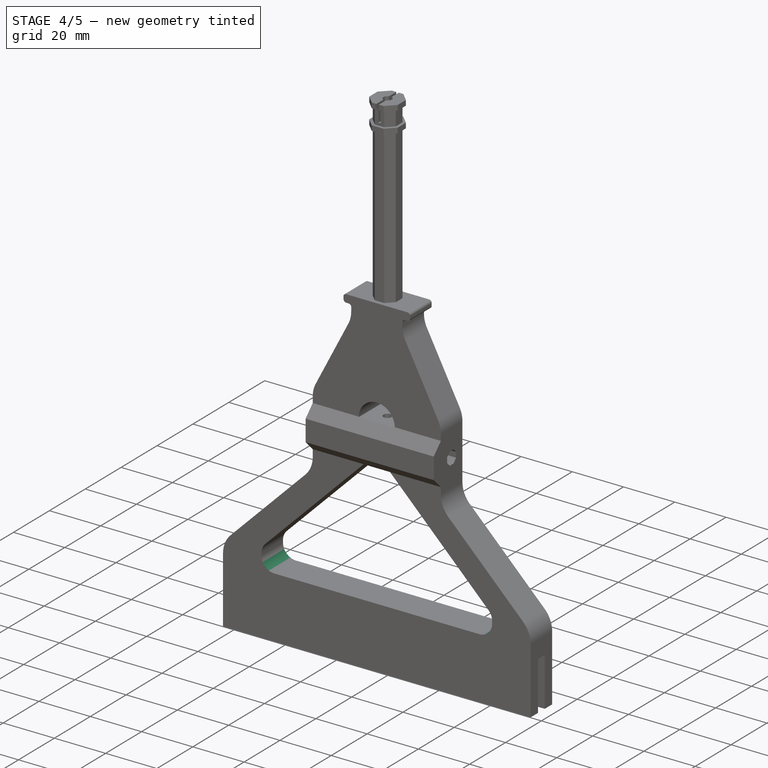
[diagram: stage 4 of 5 — iso view after this stage's code; geometry added in this stage tinted green]
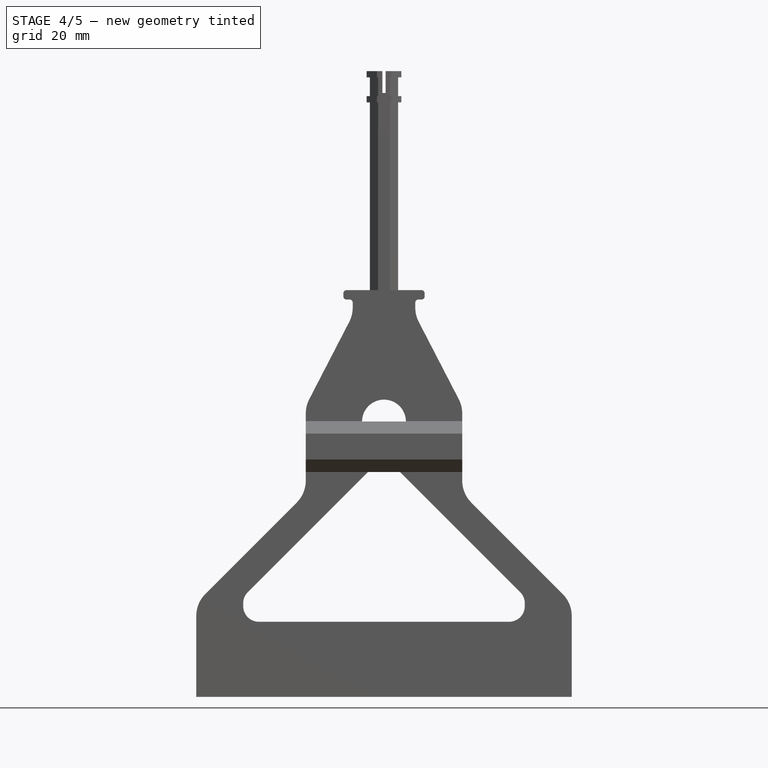
[diagram: stage 4 of 5 — front view after this stage's code; geometry added in this stage tinted green]
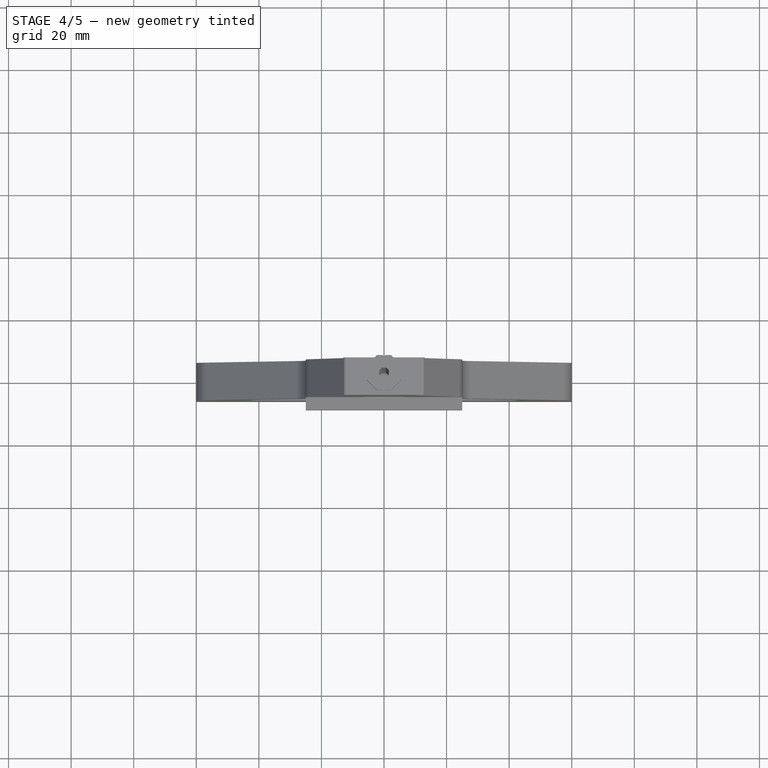
[diagram: stage 4 of 5 — top view after this stage's code; geometry added in this stage tinted green]
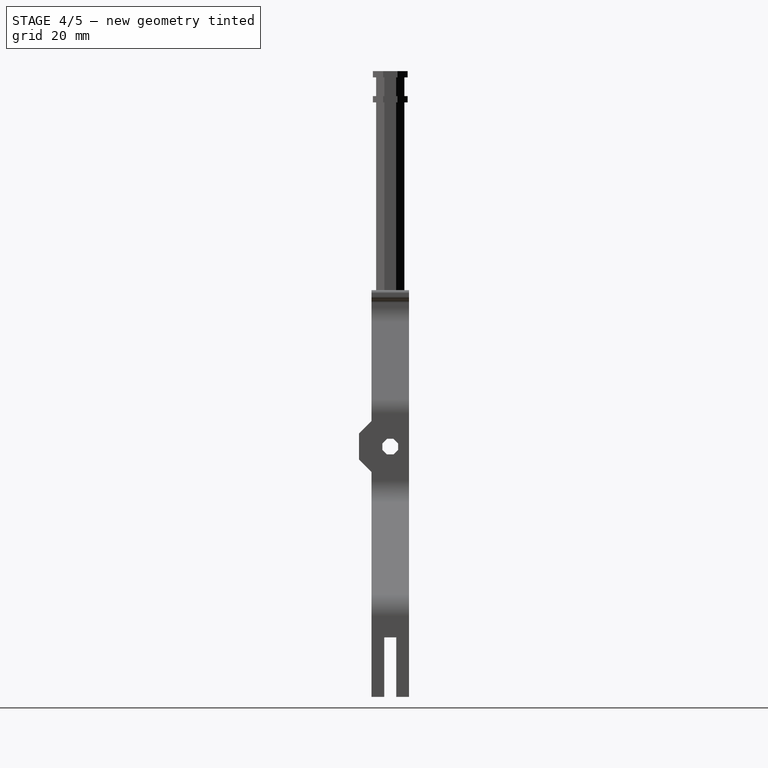
[diagram: stage 4 of 5 — right view after this stage's code; geometry added in this stage tinted green]
FEATURE [PartDesign::Fillet] Fillet002
  Base = -> Fillet001 [Edge54,Edge50,Edge62,Edge58]
  BaseFeature = -> Fillet001
  Placement = pos=(0,0,0) rot=(0.57735,0.57735,0.57735;2.0944rad)
  Radius = 5
FEATURE [PartDesign::Fillet] Fillet003
  Base = -> Fillet002 [Edge199,Edge219,Edge234,Edge218]
  BaseFeature = -> Fillet002
  Placement = pos=(0,0,0) rot=(0.57735,0.57735,0.57735;2.0944rad)
  Radius = 10
FEATURE [PartDesign::Fillet] Fillet004
  Base = -> Fillet003 [Edge79,Edge76,Edge65]
  BaseFeature = -> Fillet003
  Placement = pos=(0,0,0) rot=(0.57735,0.57735,0.57735;2.0944rad)
  Radius = 1
FEATURE [PartDesign::Fillet] Fillet005
  Base = -> Fillet004 [Edge39,Edge35,Edge24]
  BaseFeature = -> Fillet004
  Placement = pos=(0,0,0) rot=(0.57735,0.57735,0.57735;2.0944rad)
  Radius = 1
FEATURE [Sketcher::SketchObject] Sketch010
  MapMode = 5
  Placement = pos=(0,0,0) rot=(0.57735,0.57735,0.57735;2.0944rad)
  Support = -> [YZ_Plane]
  expr: Constraints[8] = DriverSheet.BridgeThick / 2
  sketch-geometry (4):
    g0: LineSegment StartX=6 StartY=15 StartZ=0 EndX=16 EndY=15 EndZ=0
    g1: LineSegment StartX=16 StartY=15 StartZ=0 EndX=16 EndY=-15 EndZ=0
    g2: LineSegment StartX=16 StartY=-15 StartZ=0 EndX=6 EndY=-15 EndZ=0
    g3: LineSegment StartX=6 StartY=-15 StartZ=0 EndX=6 EndY=15 EndZ=0
  constraints (12):
    c: Coincident(g0,g1)
    c: Coincident(g1,g2)
    c: Coincident(g2,g3)
    c: Coincident(g3,g0)
    c: Horizontal(g0)
    c: Horizontal(g2)
    c: Vertical(g1)
    c: Vertical(g3)
    c: DistanceX(g-1,g2) = 6
    c: Symmetric(g0,g2,g-1)
    c: DistanceX(g0,g0) = 10
    c: DistanceY(g1,g1) = 30
FEATURE [PartDesign::Pocket] Pocket005
  BaseFeature = -> Fillet005
  Length = 5
  Length2 = 100
  Midplane = true
  Placement = pos=(0,0,0) rot=(0.57735,0.57735,0.57735;2.0944rad)
  Profile = -> Sketch010
  Type = 1
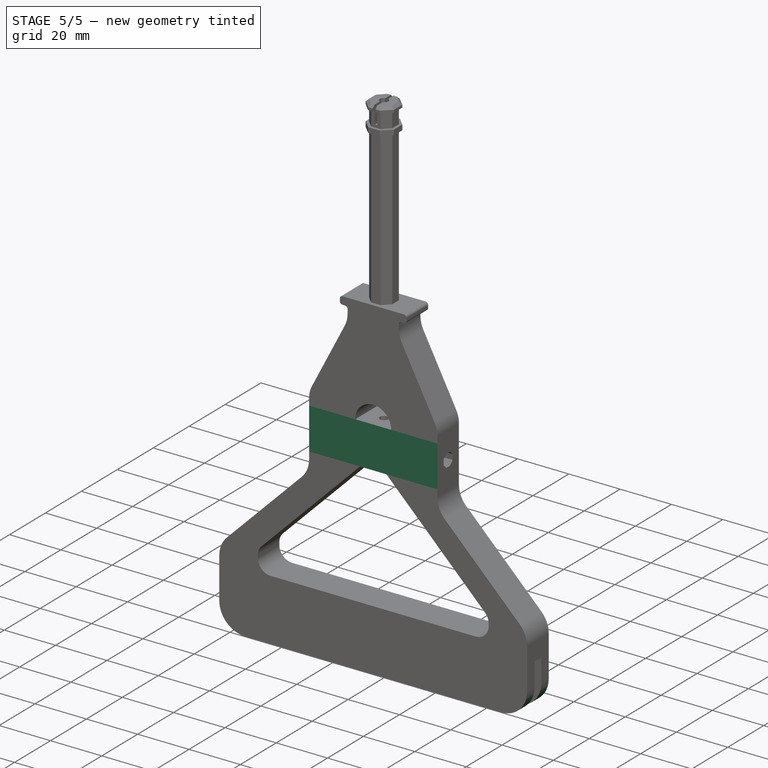
[diagram: stage 5 of 5 — iso view after this stage's code; geometry added in this stage tinted green]
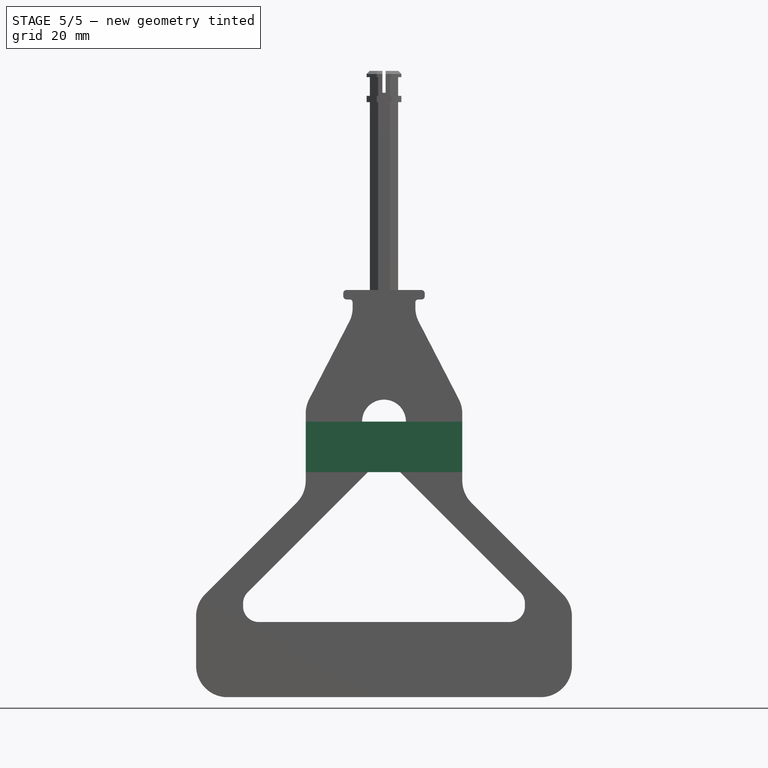
[diagram: stage 5 of 5 — front view after this stage's code; geometry added in this stage tinted green]
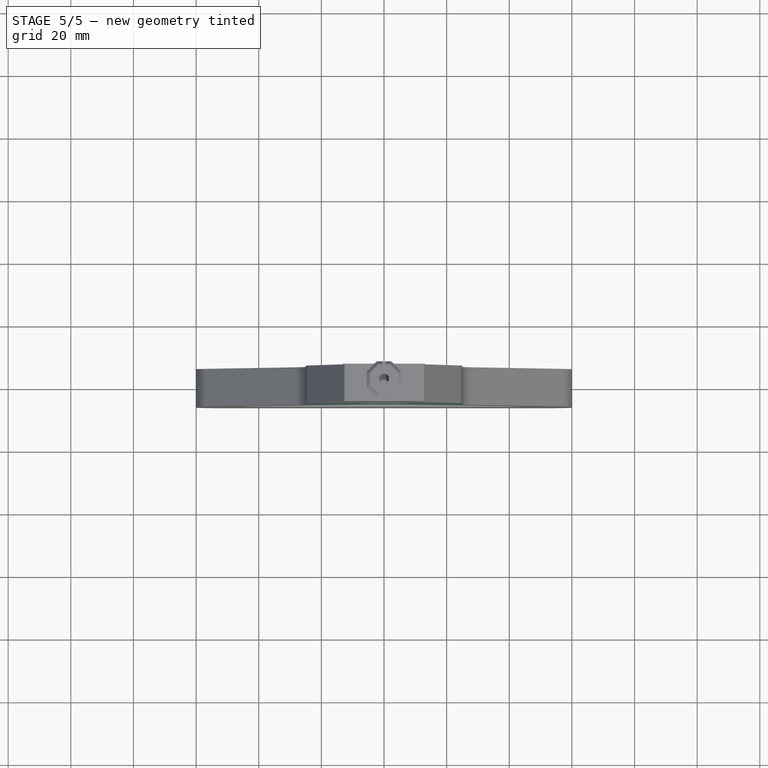
[diagram: stage 5 of 5 — top view after this stage's code; geometry added in this stage tinted green]
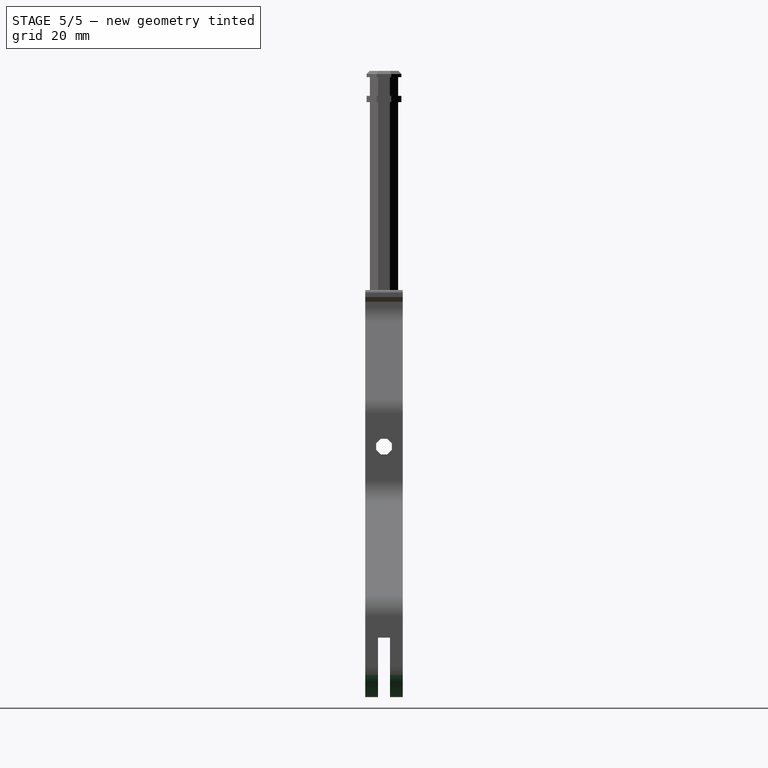
[diagram: stage 5 of 5 — right view after this stage's code; geometry added in this stage tinted green]
FEATURE [Sketcher::SketchObject] Sketch011
  MapMode = 5
  Placement = pos=(0,0,0) rot=(0.57735,0.57735,0.57735;2.0944rad)
  Support = -> [YZ_Plane]
  expr: Constraints[8] = DriverSheet.BridgeThick / 2
  sketch-geometry (4):
    g0: LineSegment StartX=-6 StartY=15 StartZ=0 EndX=-16 EndY=15 EndZ=0
    g1: LineSegment StartX=-16 StartY=15 StartZ=0 EndX=-16 EndY=-15 EndZ=0
    g2: LineSegment StartX=-16 StartY=-15 StartZ=0 EndX=-6 EndY=-15 EndZ=0
    g3: LineSegment StartX=-6 StartY=-15 StartZ=0 EndX=-6 EndY=15 EndZ=0
  constraints (12):
    c: Coincident(g0,g1)
    c: Coincident(g1,g2)
    c: Coincident(g2,g3)
    c: Coincident(g3,g0)
    c: Horizontal(g0)
    c: Horizontal(g2)
    c: Vertical(g1)
    c: Vertical(g3)
    c: DistanceX(g0,g-1) = 6
    c: Symmetric(g0,g1,g-1)
    c: DistanceX(g0,g0) = 10
    c: DistanceY(g1,g1) = 30
FEATURE [PartDesign::Pocket] Pocket006
  BaseFeature = -> Pocket005
  Length = 5
  Length2 = 100
  Midplane = true
  Placement = pos=(0,0,0) rot=(0.57735,0.57735,0.57735;2.0944rad)
  Profile = -> Sketch011
  Type = 1
FEATURE [PartDesign::Fillet] Fillet006
  Base = -> Pocket006 [Edge347,Edge349,Edge343,Edge341]
  BaseFeature = -> Pocket006
  Placement = pos=(0,0,0) rot=(0.57735,0.57735,0.57735;2.0944rad)
  Radius = 10
FEATURE [PartDesign::Chamfer] Chamfer
  Base = -> Fillet006 [Edge421,Edge422,Edge423,Edge424,Edge425]
  BaseFeature = -> Fillet006
  Placement = pos=(0,0,0) rot=(0.57735,0.57735,0.57735;2.0944rad)
  Size = 1
FEATURE [PartDesign::Chamfer] Chamfer001
  Base = -> Chamfer [Edge175,Edge174,Edge173,Edge172,Edge176]
  BaseFeature = -> Chamfer
  Placement = pos=(0,0,0) rot=(0.57735,0.57735,0.57735;2.0944rad)
  Size = 1
FEATURE [PartDesign::Body] Body
  Group = -> [Sketch,Pad,Sketch001,Pad001,Sketch002,Pad002,Sketch003,Pocket,Sketch004,Pocket001,Sketch005,Pad003,LinearPattern,Sketch006,Pocket002,Sketch007,Pad004,Sketch008,Pocket003,Sketch009,Pocket004,Fillet,Fillet001,Fillet002,Fillet003,Fillet004,Fillet005,Sketch010,Pocket005,Sketch011,Pocket006,Fillet006,Chamfer,Chamfer001]
  Origin = -> Origin
  Tip = -> Chamfer001
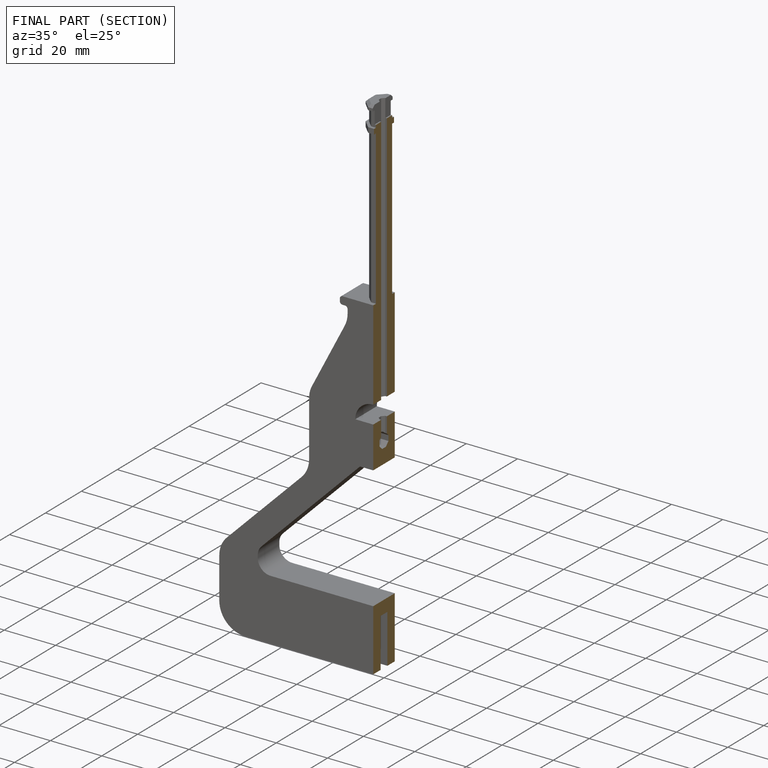
[diagram: finished part — half-section view (interior)]
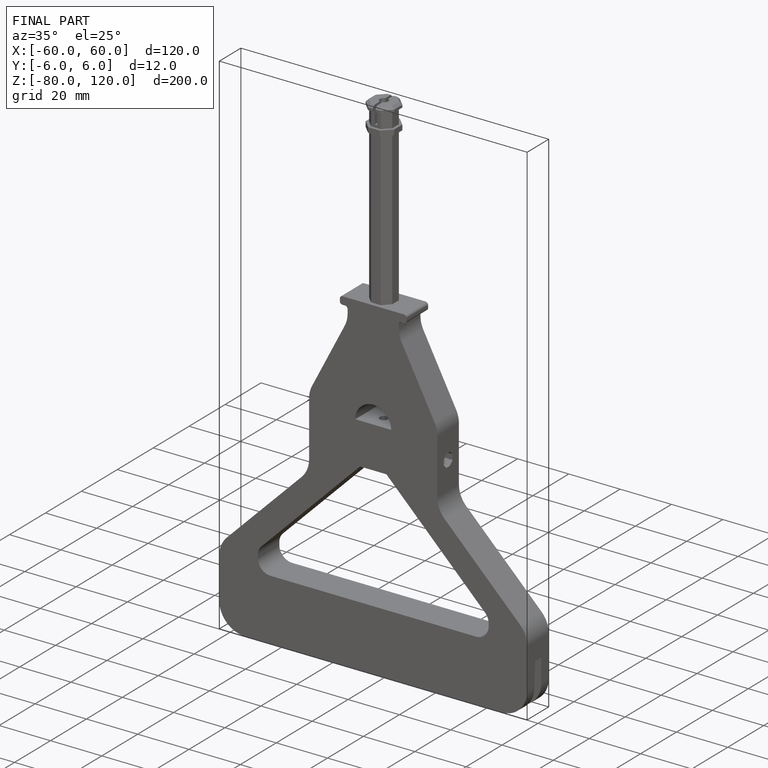
[diagram: finished part — iso view with bounding-box wireframe]
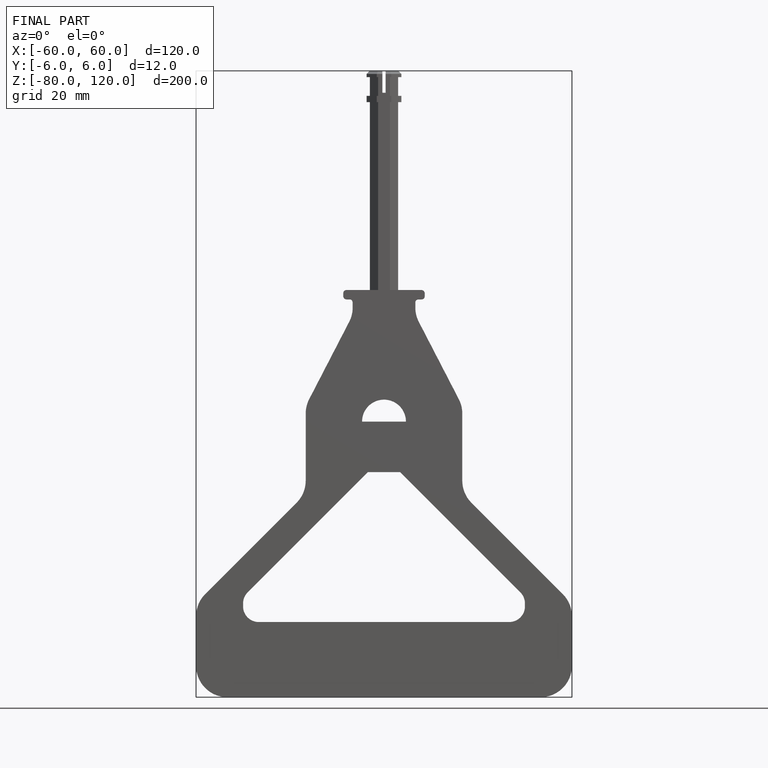
[diagram: finished part — front view with bounding-box wireframe]
